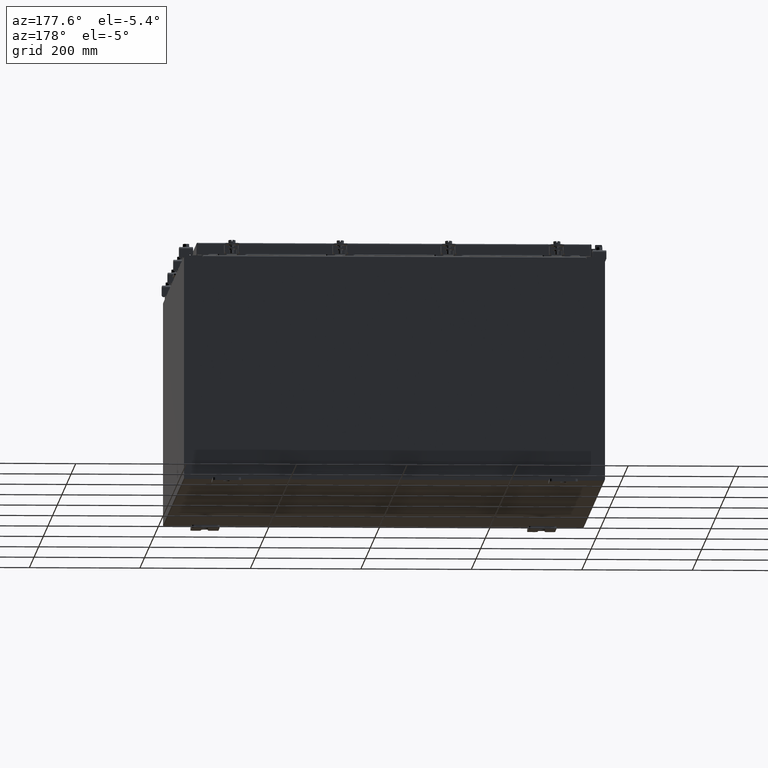
[diagram: clean part render]
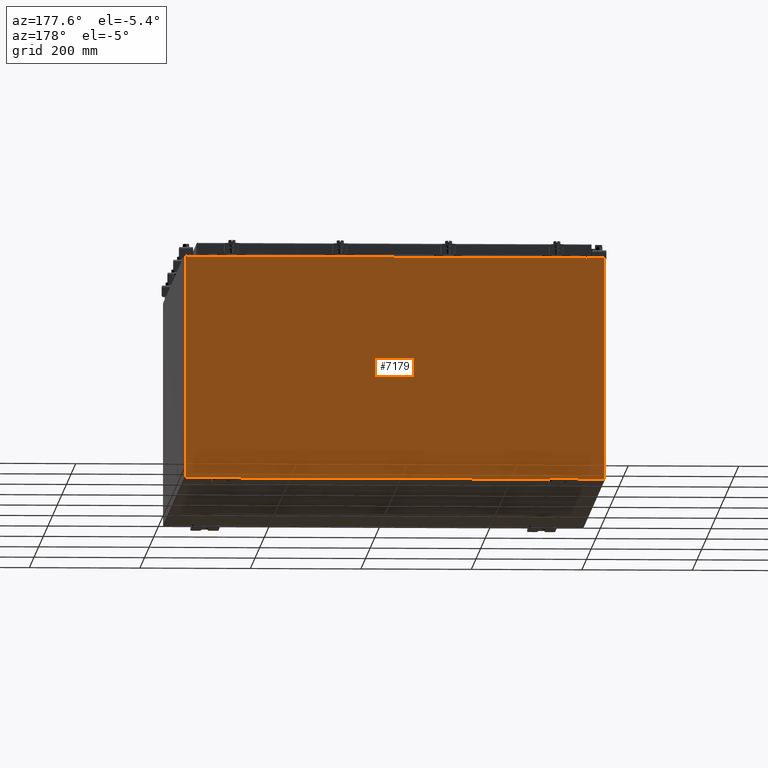
[diagram: same view with one face highlighted and labeled with its STEP entity id]
A machine part, auxiliary view. The second image highlights one B-rep face of the part: STEP entity #7179.
In plain terms, the highlighted planar face has unit normal (0, -1, 0).
Its self-contained STEP definition (entity closure, byte-faithful):
#339 = CARTESIAN_POINT ( 'NONE',  ( -13.63719999999999800, 3.756290991288361700E-016, 7.912300000000006300 ) ) ;
#448 = EDGE_CURVE ( 'NONE', #14691, #14040, #20505, .T. ) ;
#802 = EDGE_LOOP ( 'NONE', ( #14149, #16665, #2712, #1835, #6953, #950, #17403, #13605, #1934, #13004, #19630, #11040 ) ) ;
#939 = VECTOR ( 'NONE', #23033, 39.37007874015748100 ) ;
#950 = ORIENTED_EDGE ( 'NONE', *, *, #448, .F. ) ;
#1314 = EDGE_CURVE ( 'NONE', #15788, #11228, #16358, .T. ) ;
#1498 = VERTEX_POINT ( 'NONE', #3788 ) ;
#1814 = EDGE_CURVE ( 'NONE', #20451, #16378, #2984, .T. ) ;
#1835 = ORIENTED_EDGE ( 'NONE', *, *, #23584, .T. ) ;
#1934 = ORIENTED_EDGE ( 'NONE', *, *, #11867, .T. ) ;
#1972 = LINE ( 'NONE', #339, #7609 ) ;
#2300 = AXIS2_PLACEMENT_3D ( 'NONE', #8745, #8824, #22043 ) ;
#2712 = ORIENTED_EDGE ( 'NONE', *, *, #2809, .F. ) ;
#2809 = EDGE_CURVE ( 'NONE', #8882, #9951, #24242, .T. ) ;
#2872 = DIRECTION ( 'NONE',  ( 1.000000000000000000, 0.0000000000000000000, -7.321388497823864400E-017 ) ) ;
#2984 = LINE ( 'NONE', #19622, #17493 ) ;
#3290 = VECTOR ( 'NONE', #13380, 39.37007874015748100 ) ;
#3592 = LINE ( 'NONE', #22074, #14293 ) ;
#3788 = CARTESIAN_POINT ( 'NONE',  ( 13.63720000000000400, 0.0000000000000000000, 7.912299999999999200 ) ) ;
#5514 = CARTESIAN_POINT ( 'NONE',  ( -13.65587499999999600, 0.0000000000000000000, 7.874949999999999200 ) ) ;
#5826 = LINE ( 'NONE', #19373, #20913 ) ;
#5950 = LINE ( 'NONE', #5999, #939 ) ;
#5999 = CARTESIAN_POINT ( 'NONE',  ( -14.92529999999999800, 0.0000000000000000000, 7.925300000000000000 ) ) ;
#6132 = DIRECTION ( 'NONE',  ( 0.0000000000000000000, 0.0000000000000000000, 1.000000000000000000 ) ) ;
#6578 = VECTOR ( 'NONE', #2872, 39.37007874015748100 ) ;
#6953 = ORIENTED_EDGE ( 'NONE', *, *, #23646, .F. ) ;
#7179 = ADVANCED_FACE ( 'NONE', ( #13126 ), #14385, .F. ) ;
#7409 = DIRECTION ( 'NONE',  ( 0.0000000000000000000, 0.0000000000000000000, -1.000000000000000000 ) ) ;
#7571 = CARTESIAN_POINT ( 'NONE',  ( 14.92530000000000200, 0.0000000000000000000, 7.925299999999997300 ) ) ;
#7609 = VECTOR ( 'NONE', #13594, 39.37007874015748100 ) ;
#7626 = CARTESIAN_POINT ( 'NONE',  ( -13.63719999999999600, -0.0000000000000000000, 7.874949999999999200 ) ) ;
#7658 = CARTESIAN_POINT ( 'NONE',  ( 13.67454999999966100, -0.0000000000000000000, -5.935537951421999000E-013 ) ) ;
#8067 = AXIS2_PLACEMENT_3D ( 'NONE', #5514, #18749, #7409 ) ;
#8286 = DIRECTION ( 'NONE',  ( 0.0000000000000000000, 0.0000000000000000000, 1.000000000000000000 ) ) ;
#8745 = CARTESIAN_POINT ( 'NONE',  ( 0.0000000000000000000, 0.0000000000000000000, 0.0000000000000000000 ) ) ;
#8761 = CARTESIAN_POINT ( 'NONE',  ( -13.67454999999999500, 0.0000000000000000000, 7.874949999999999200 ) ) ;
#8824 = DIRECTION ( 'NONE',  ( 0.0000000000000000000, -1.000000000000000000, 0.0000000000000000000 ) ) ;
#8882 = VERTEX_POINT ( 'NONE', #17845 ) ;
#8956 = AXIS2_PLACEMENT_3D ( 'NONE', #21587, #10292, #23501 ) ;
#9472 = DIRECTION ( 'NONE',  ( 0.0000000000000000000, 0.0000000000000000000, -1.000000000000000000 ) ) ;
#9951 = VERTEX_POINT ( 'NONE', #7626 ) ;
#10292 = DIRECTION ( 'NONE',  ( -0.0000000000000000000, 1.000000000000000000, -0.0000000000000000000 ) ) ;
#10658 = EDGE_CURVE ( 'NONE', #22320, #13477, #11046, .T. ) ;
#10774 = EDGE_CURVE ( 'NONE', #15301, #16378, #3592, .T. ) ;
#10919 = EDGE_CURVE ( 'NONE', #9951, #20451, #15755, .T. ) ;
#11038 = EDGE_CURVE ( 'NONE', #22320, #14691, #18403, .T. ) ;
#11040 = ORIENTED_EDGE ( 'NONE', *, *, #10774, .T. ) ;
#11046 = LINE ( 'NONE', #18030, #6578 ) ;
#11162 = EDGE_CURVE ( 'NONE', #11228, #15301, #5950, .T. ) ;
#11228 = VERTEX_POINT ( 'NONE', #13793 ) ;
#11867 = EDGE_CURVE ( 'NONE', #13477, #15788, #15673, .T. ) ;
#11982 = DIRECTION ( 'NONE',  ( 0.0000000000000000000, 0.0000000000000000000, -1.000000000000000000 ) ) ;
#12866 = CARTESIAN_POINT ( 'NONE',  ( -14.92529999999999800, 0.0000000000000000000, -7.925300000000000000 ) ) ;
#12943 = CARTESIAN_POINT ( 'NONE',  ( 13.67455000000000400, 0.0000000000000000000, 7.925299999999997300 ) ) ;
#13004 = ORIENTED_EDGE ( 'NONE', *, *, #1314, .T. ) ;
#13126 = FACE_OUTER_BOUND ( 'NONE', #802, .T. ) ;
#13380 = DIRECTION ( 'NONE',  ( -4.340572780400193600E-014, 0.0000000000000000000, -1.000000000000000000 ) ) ;
#13477 = VERTEX_POINT ( 'NONE', #16228 ) ;
#13594 = DIRECTION ( 'NONE',  ( 1.000000000000000000, 0.0000000000000000000, 0.0000000000000000000 ) ) ;
#13605 = ORIENTED_EDGE ( 'NONE', *, *, #10658, .T. ) ;
#13793 = CARTESIAN_POINT ( 'NONE',  ( -14.92529999999999800, 0.0000000000000000000, -7.925300000000000000 ) ) ;
#13867 = CARTESIAN_POINT ( 'NONE',  ( 13.63720000000000400, 0.0000000000000000000, 7.874949999999999200 ) ) ;
#14040 = VERTEX_POINT ( 'NONE', #13867 ) ;
#14149 = ORIENTED_EDGE ( 'NONE', *, *, #1814, .F. ) ;
#14293 = VECTOR ( 'NONE', #23962, 39.37007874015748100 ) ;
#14385 = PLANE ( 'NONE',  #2300 ) ;
#14485 = VECTOR ( 'NONE', #9472, 39.37007874015748100 ) ;
#14691 = VERTEX_POINT ( 'NONE', #23917 ) ;
#15301 = VERTEX_POINT ( 'NONE', #19850 ) ;
#15673 = LINE ( 'NONE', #7571, #14485 ) ;
#15755 = CIRCLE ( 'NONE', #8067, 0.01867499999999949400 ) ;
#15788 = VERTEX_POINT ( 'NONE', #21390 ) ;
#16228 = CARTESIAN_POINT ( 'NONE',  ( 14.92530000000000200, 0.0000000000000000000, 7.925299999999997300 ) ) ;
#16358 = LINE ( 'NONE', #12866, #21950 ) ;
#16378 = VERTEX_POINT ( 'NONE', #19793 ) ;
#16665 = ORIENTED_EDGE ( 'NONE', *, *, #10919, .F. ) ;
#17403 = ORIENTED_EDGE ( 'NONE', *, *, #11038, .F. ) ;
#17493 = VECTOR ( 'NONE', #8286, 39.37007874015748100 ) ;
#17575 = CARTESIAN_POINT ( 'NONE',  ( -13.63719999999999600, -0.0000000000000000000, 0.0000000000000000000 ) ) ;
#17845 = CARTESIAN_POINT ( 'NONE',  ( -13.63719999999999600, 3.756290991288361700E-016, 7.912300000000006300 ) ) ;
#18030 = CARTESIAN_POINT ( 'NONE',  ( -14.92529999999999800, 0.0000000000000000000, 7.925300000000000000 ) ) ;
#18403 = LINE ( 'NONE', #7658, #3290 ) ;
#18749 = DIRECTION ( 'NONE',  ( -0.0000000000000000000, 1.000000000000000000, -0.0000000000000000000 ) ) ;
#19226 = VECTOR ( 'NONE', #11982, 39.37007874015748100 ) ;
#19373 = CARTESIAN_POINT ( 'NONE',  ( 13.63720000000000400, 0.0000000000000000000, 0.0000000000000000000 ) ) ;
#19622 = CARTESIAN_POINT ( 'NONE',  ( -13.67454999999999500, -0.0000000000000000000, 0.0000000000000000000 ) ) ;
#19630 = ORIENTED_EDGE ( 'NONE', *, *, #11162, .T. ) ;
#19793 = CARTESIAN_POINT ( 'NONE',  ( -13.67454999999999500, 0.0000000000000000000, 7.925300000000000000 ) ) ;
#19850 = CARTESIAN_POINT ( 'NONE',  ( -14.92529999999999800, 0.0000000000000000000, 7.925300000000000000 ) ) ;
#20359 = DIRECTION ( 'NONE',  ( -1.000000000000000000, -0.0000000000000000000, -0.0000000000000000000 ) ) ;
#20451 = VERTEX_POINT ( 'NONE', #8761 ) ;
#20505 = CIRCLE ( 'NONE', #8956, 0.01867499999999949400 ) ;
#20913 = VECTOR ( 'NONE', #6132, 39.37007874015748100 ) ;
#21390 = CARTESIAN_POINT ( 'NONE',  ( 14.92530000000000200, 0.0000000000000000000, -7.925300000000000000 ) ) ;
#21587 = CARTESIAN_POINT ( 'NONE',  ( 13.65587500000000200, 0.0000000000000000000, 7.874949999999999200 ) ) ;
#21950 = VECTOR ( 'NONE', #20359, 39.37007874015748100 ) ;
#22043 = DIRECTION ( 'NONE',  ( 0.0000000000000000000, -0.0000000000000000000, -1.000000000000000000 ) ) ;
#22074 = CARTESIAN_POINT ( 'NONE',  ( -14.92529999999999800, 0.0000000000000000000, 7.925300000000000000 ) ) ;
#22320 = VERTEX_POINT ( 'NONE', #12943 ) ;
#23033 = DIRECTION ( 'NONE',  ( -0.0000000000000000000, -0.0000000000000000000, 1.000000000000000000 ) ) ;
#23501 = DIRECTION ( 'NONE',  ( 0.0000000000000000000, 0.0000000000000000000, -1.000000000000000000 ) ) ;
#23584 = EDGE_CURVE ( 'NONE', #8882, #1498, #1972, .T. ) ;
#23646 = EDGE_CURVE ( 'NONE', #14040, #1498, #5826, .T. ) ;
#23917 = CARTESIAN_POINT ( 'NONE',  ( 13.67455000000000200, 0.0000000000000000000, 7.874949999999999200 ) ) ;
#23962 = DIRECTION ( 'NONE',  ( 1.000000000000000000, 0.0000000000000000000, -7.321388497823864400E-017 ) ) ;
#24242 = LINE ( 'NONE', #17575, #19226 ) ;